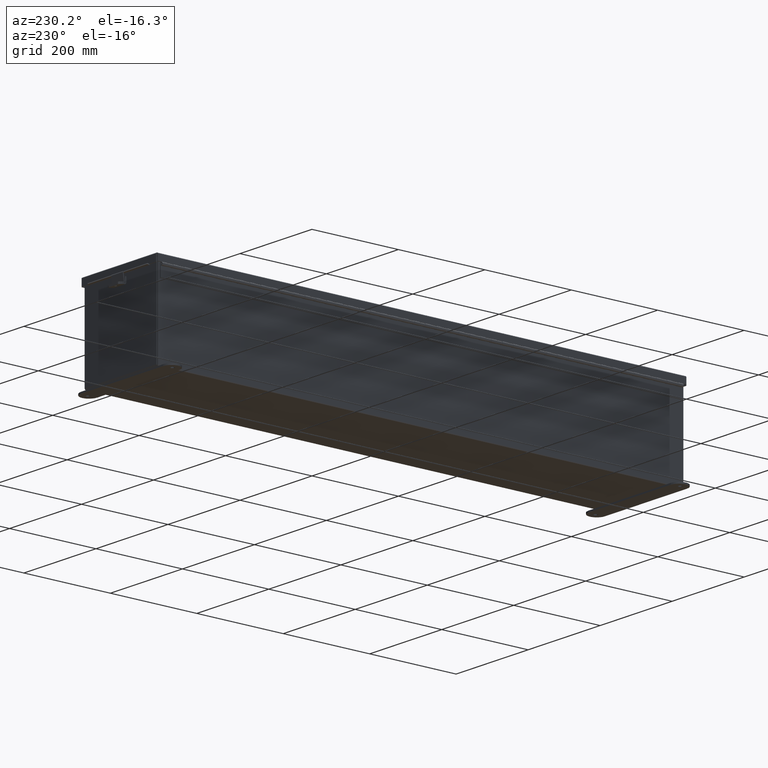
[diagram: clean part render]
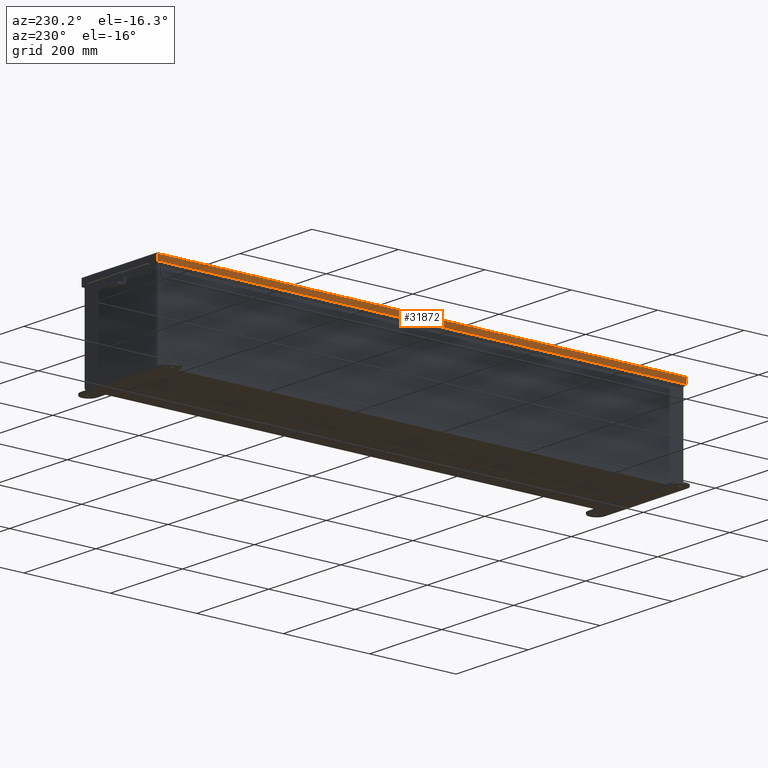
[diagram: same view with one face highlighted and labeled with its STEP entity id]
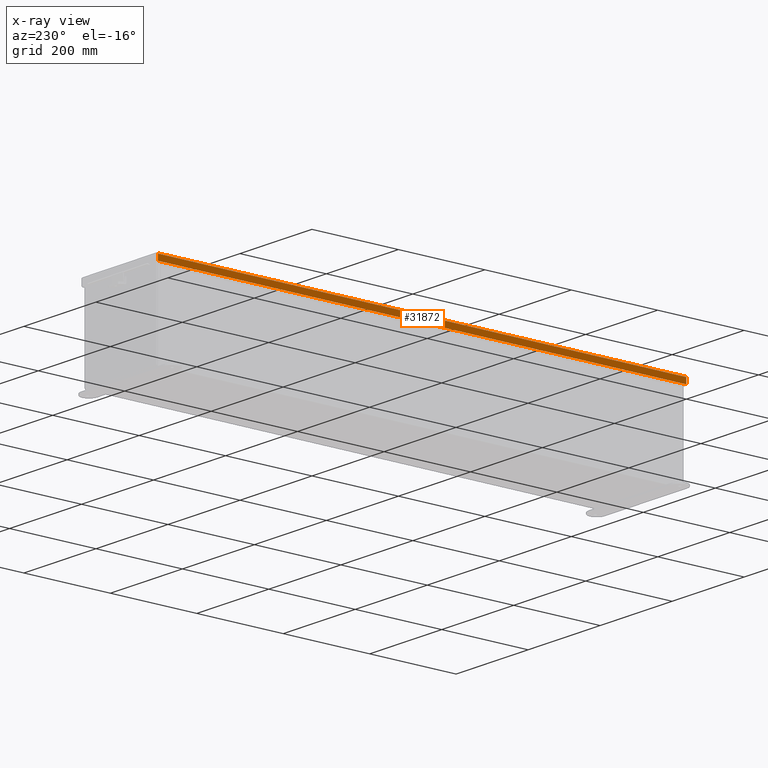
[diagram: x-ray of the same camera — body ghosted, the highlighted face saturated]
A machine part, auxiliary view. The second image highlights one B-rep face of the part: STEP entity #31872.
The next image is the same camera in x-ray: the body ghosted, the highlighted face saturated — about 0% of this face is hidden behind the body in this view.
In plain terms, the highlighted planar face has unit normal (1, -0, -0).
Its self-contained STEP definition (entity closure, byte-faithful):
#671 = AXIS2_PLACEMENT_3D ( 'NONE', #16590, #36453, #19540 ) ;
#748 = VECTOR ( 'NONE', #11689, 39.37007874015748100 ) ;
#3253 = LINE ( 'NONE', #25447, #17399 ) ;
#8260 = LINE ( 'NONE', #31400, #748 ) ;
#11040 = PLANE ( 'NONE',  #671 ) ;
#11689 = DIRECTION ( 'NONE',  ( 3.971430846686188400E-015, 1.109335647967047900E-031, 1.000000000000000000 ) ) ;
#11929 = CARTESIAN_POINT ( 'NONE',  ( 4.156250000000001800, 0.0000000000000000000, 0.5503000000000010100 ) ) ;
#12438 = ORIENTED_EDGE ( 'NONE', *, *, #34290, .F. ) ;
#13435 = VECTOR ( 'NONE', #25074, 39.37007874015748100 ) ;
#13804 = CARTESIAN_POINT ( 'NONE',  ( 4.156250000000004400, -24.15625000000005000, 0.01299999999999901400 ) ) ;
#15220 = LINE ( 'NONE', #13804, #13435 ) ;
#15561 = EDGE_CURVE ( 'NONE', #22545, #36106, #8260, .T. ) ;
#16590 = CARTESIAN_POINT ( 'NONE',  ( 4.156250000000004400, 0.0000000000000000000, -1.639108796198557900E-014 ) ) ;
#16801 = CARTESIAN_POINT ( 'NONE',  ( 4.156250000000001800, -24.07447893218818200, 0.5502999999999999000 ) ) ;
#17399 = VECTOR ( 'NONE', #23331, 39.37007874015748100 ) ;
#17478 = ORIENTED_EDGE ( 'NONE', *, *, #34187, .F. ) ;
#17582 = CARTESIAN_POINT ( 'NONE',  ( 4.156250000000004400, 24.07447893218808600, 0.01300000000000010700 ) ) ;
#17586 = DIRECTION ( 'NONE',  ( -4.475278640408036400E-031, -1.000000000000000000, -1.109335647967047900E-031 ) ) ;
#19540 = DIRECTION ( 'NONE',  ( 3.971430846686188400E-015, 1.109335647967047900E-031, 1.000000000000000000 ) ) ;
#19566 = EDGE_CURVE ( 'NONE', #36106, #35298, #32190, .T. ) ;
#21645 = CARTESIAN_POINT ( 'NONE',  ( 4.156250000000004400, -24.07447893218818200, 0.01299999999999901400 ) ) ;
#22149 = ORIENTED_EDGE ( 'NONE', *, *, #15561, .T. ) ;
#22545 = VERTEX_POINT ( 'NONE', #17582 ) ;
#23331 = DIRECTION ( 'NONE',  ( 3.971430846686188400E-015, 1.109335647967047900E-031, 1.000000000000000000 ) ) ;
#24725 = VECTOR ( 'NONE', #17586, 39.37007874015748100 ) ;
#25074 = DIRECTION ( 'NONE',  ( -4.475278640408036400E-031, -1.000000000000000000, -1.109335647967047900E-031 ) ) ;
#25447 = CARTESIAN_POINT ( 'NONE',  ( 4.156250000000004400, -24.07447893218818200, -1.092739197465705300E-015 ) ) ;
#26328 = EDGE_LOOP ( 'NONE', ( #17478, #22149, #31560, #12438 ) ) ;
#28645 = FACE_OUTER_BOUND ( 'NONE', #26328, .T. ) ;
#29760 = CARTESIAN_POINT ( 'NONE',  ( 4.156250000000001800, 24.07447893218808600, 0.5502999999999999000 ) ) ;
#31400 = CARTESIAN_POINT ( 'NONE',  ( 4.156250000000004400, 24.07447893218808600, -1.639108796198557900E-014 ) ) ;
#31560 = ORIENTED_EDGE ( 'NONE', *, *, #19566, .T. ) ;
#31872 = ADVANCED_FACE ( 'NONE', ( #28645 ), #11040, .F. ) ;
#32190 = LINE ( 'NONE', #11929, #24725 ) ;
#33515 = VERTEX_POINT ( 'NONE', #21645 ) ;
#34187 = EDGE_CURVE ( 'NONE', #22545, #33515, #15220, .T. ) ;
#34290 = EDGE_CURVE ( 'NONE', #33515, #35298, #3253, .T. ) ;
#35298 = VERTEX_POINT ( 'NONE', #16801 ) ;
#36106 = VERTEX_POINT ( 'NONE', #29760 ) ;
#36453 = DIRECTION ( 'NONE',  ( -1.000000000000000000, -4.376638457125922500E-031, 3.971430846686188400E-015 ) ) ;